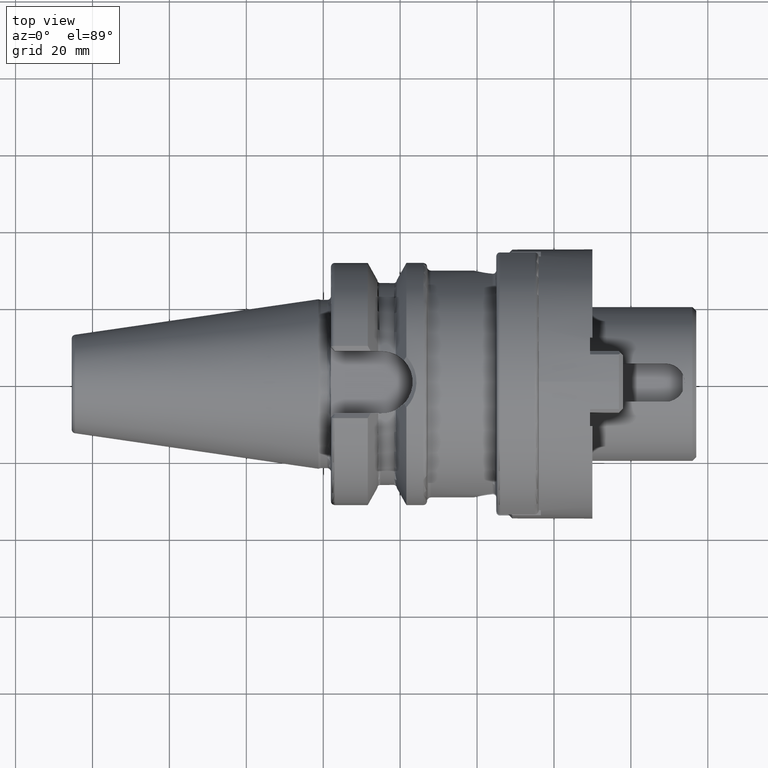
[diagram: clean part render]
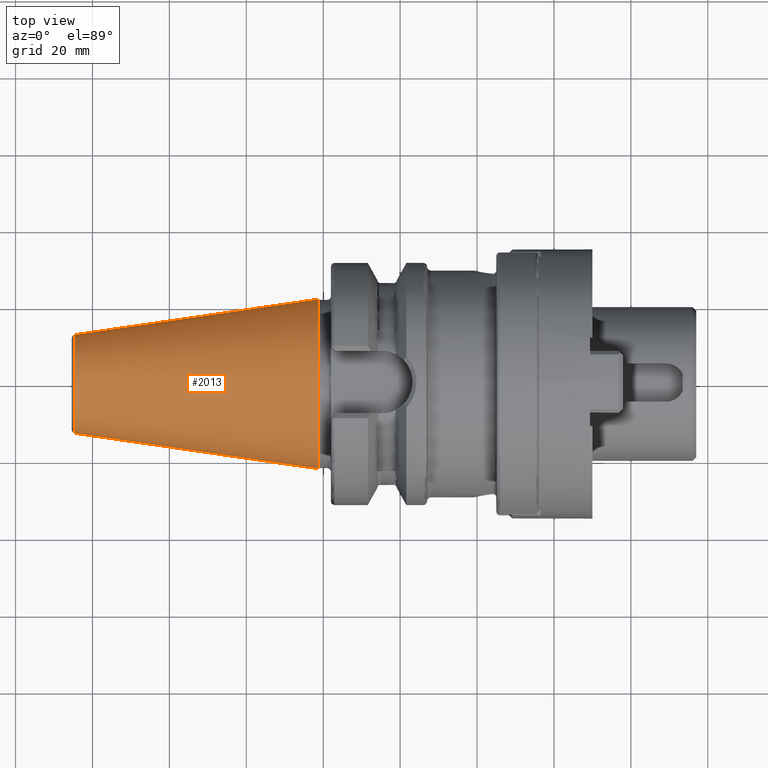
[diagram: same view with one face highlighted and labeled with its STEP entity id]
A machine part, top view. The second image highlights one B-rep face of the part: STEP entity #2013.
In plain terms, the highlighted conical surface has half-angle 8.298 deg.
Its self-contained STEP definition (entity closure, byte-faithful):
#37=CARTESIAN_POINT('',(-6.454431866917E1,0.E0,0.E0));
#38=DIRECTION('',(1.E0,0.E0,0.E0));
#39=DIRECTION('',(0.E0,1.E0,0.E0));
#40=AXIS2_PLACEMENT_3D('',#37,#38,#39);
#42=CARTESIAN_POINT('',(-1.266732031557E0,0.E0,0.E0));
#43=DIRECTION('',(1.E0,0.E0,0.E0));
#44=DIRECTION('',(0.E0,1.E0,0.E0));
#45=AXIS2_PLACEMENT_3D('',#42,#43,#44);
#47=DIRECTION('',(-9.895312636440E-1,-1.443186691705E-1,0.E0));
#48=VECTOR('',#47,6.394703124850E1);
#49=CARTESIAN_POINT('',(-1.266732031557E0,2.204025284980E1,0.E0));
#50=LINE('',#49,#48);
#51=DIRECTION('',(-9.895312636440E-1,1.443186691705E-1,0.E0));
#52=VECTOR('',#51,6.394703124850E1);
#53=CARTESIAN_POINT('',(-1.266732031557E0,-2.204025284980E1,0.E0));
#54=LINE('',#53,#52);
#1628=CARTESIAN_POINT('',(-6.454431866917E1,1.281150240261E1,0.E0));
#1630=VERTEX_POINT('',#1628);
#1632=CARTESIAN_POINT('',(-6.454431866917E1,-1.281150240261E1,0.E0));
#1634=VERTEX_POINT('',#1632);
#1843=CARTESIAN_POINT('',(-1.266732031557E0,2.204025284980E1,0.E0));
#1844=VERTEX_POINT('',#1843);
#1845=CARTESIAN_POINT('',(-1.266732031557E0,-2.204025284980E1,0.E0));
#1846=VERTEX_POINT('',#1845);
#1999=CARTESIAN_POINT('',(-3.290552535036E1,0.E0,0.E0));
#2000=DIRECTION('',(1.E0,0.E0,0.E0));
#2001=DIRECTION('',(0.E0,-1.E0,0.E0));
#2002=AXIS2_PLACEMENT_3D('',#1999,#2000,#2001);
#2003=CONICAL_SURFACE('',#2002,1.742587762621E1,8.297826828206E0);
#2005=ORIENTED_EDGE('',*,*,#2004,.F.);
#2007=ORIENTED_EDGE('',*,*,#2006,.T.);
#2009=ORIENTED_EDGE('',*,*,#2008,.T.);
#2010=ORIENTED_EDGE('',*,*,#1992,.F.);
#2011=EDGE_LOOP('',(#2005,#2007,#2009,#2010));
#2012=FACE_OUTER_BOUND('',#2011,.F.);
#2013=ADVANCED_FACE('',(#2012),#2003,.T.);
#41=CIRCLE('',#40,1.281150240261E1);
#46=CIRCLE('',#45,2.204025284980E1);
#1992=EDGE_CURVE('',#1630,#1634,#41,.T.);
#2004=EDGE_CURVE('',#1844,#1630,#50,.T.);
#2006=EDGE_CURVE('',#1844,#1846,#46,.T.);
#2008=EDGE_CURVE('',#1846,#1634,#54,.T.);